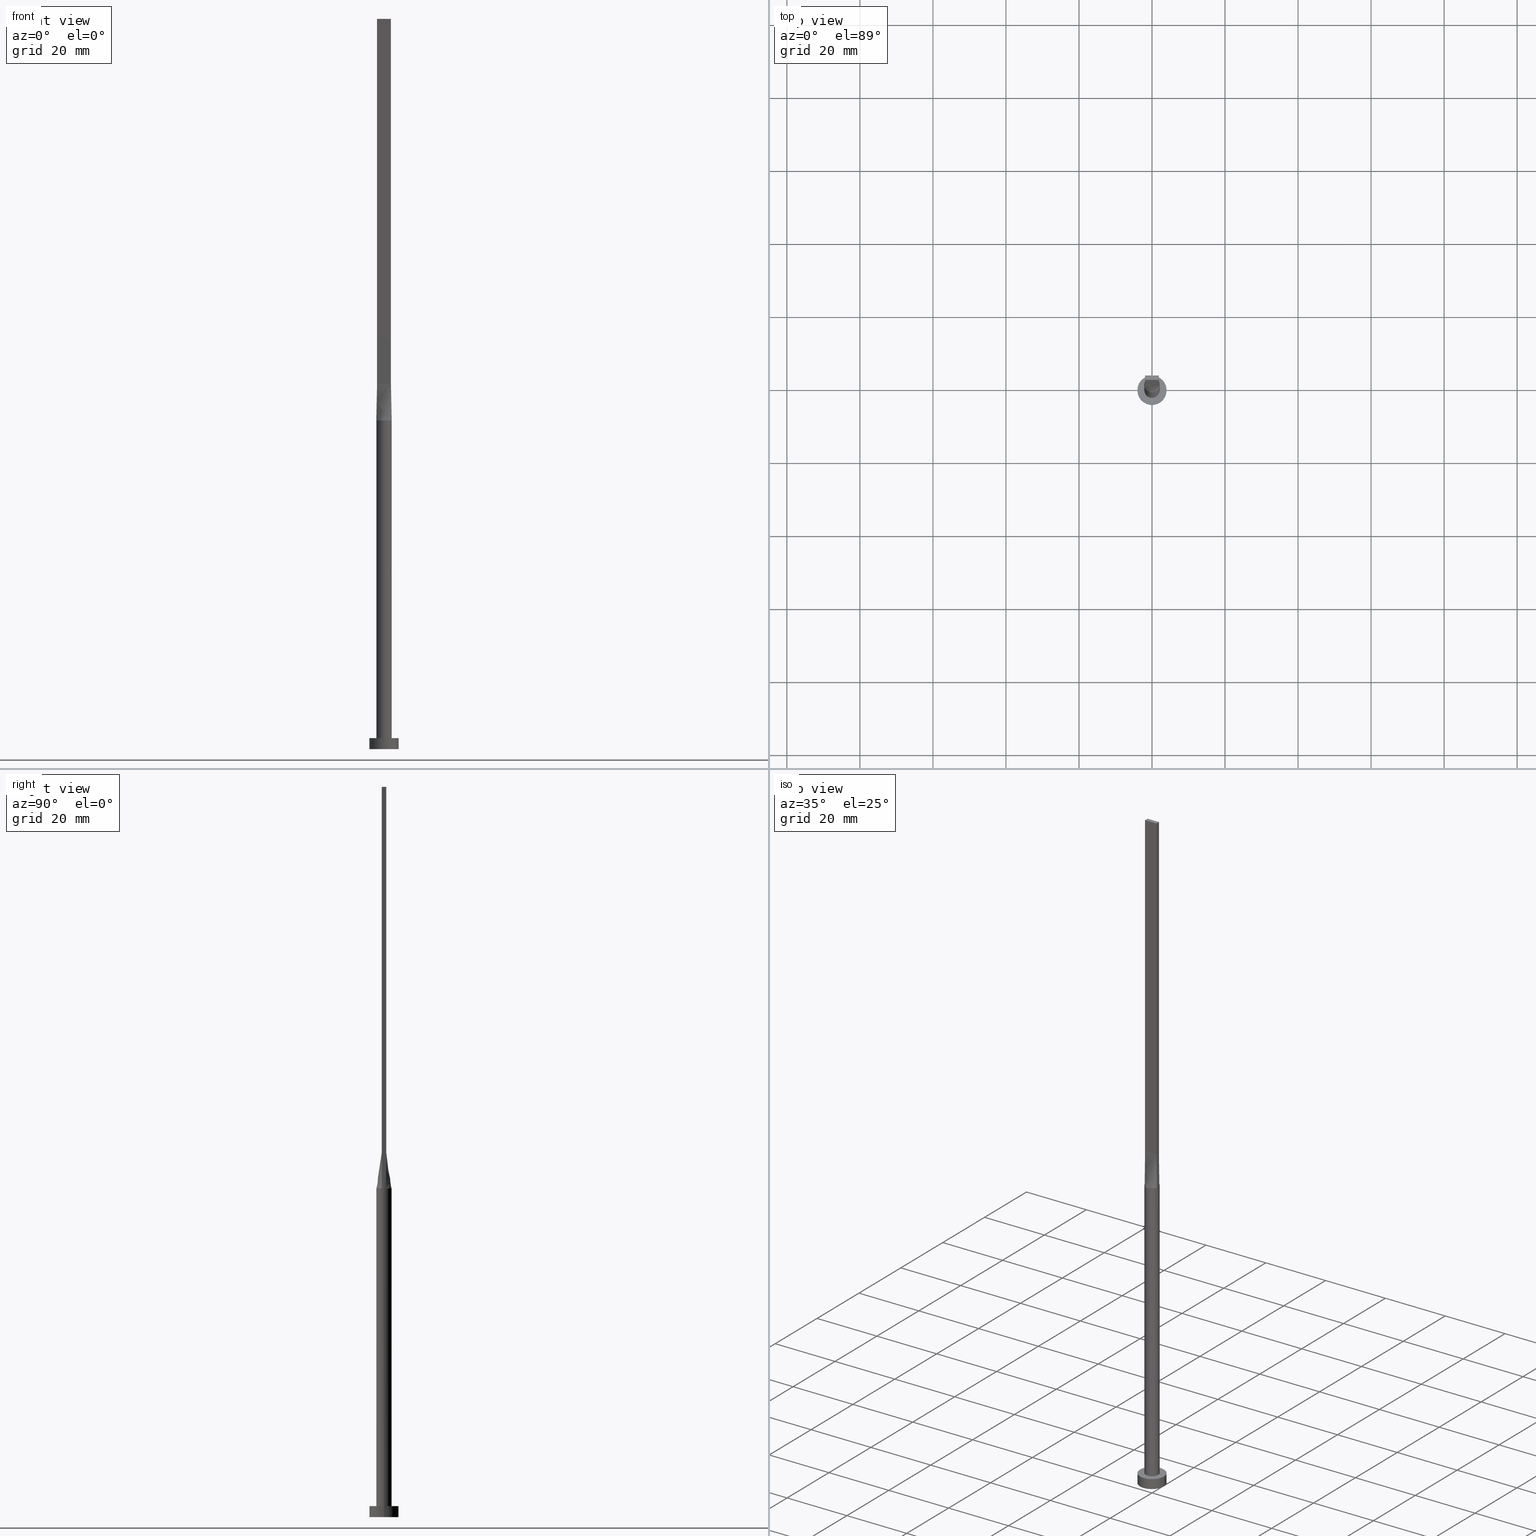
[diagram: canonical four-view strip — front | top / right | iso, engineering-drawing reading convention]
A machine part, canonical four-view strip (front | top / right | iso — engineering-drawing reading convention). The complete STEP part file that produces these views, byte-faithful:
ISO-10303-21;
HEADER;
FILE_DESCRIPTION (( 'STEP AP203' ),
    '1' );
FILE_NAME ('0564.STEP',
    '2023-02-13T11:23:46',
    ( '' ),
    ( '' ),
    'SwSTEP 2.0',
    'SolidWorks 2019',
    '' );
FILE_SCHEMA (( 'CONFIG_CONTROL_DESIGN' ));
ENDSEC;

DATA;
#1 = CARTESIAN_POINT ( 'NONE',  ( -1.667357759214464830, 1.291791096182927534, 90.00000000000001421 ) ) ;
#2 = EDGE_CURVE ( 'NONE', #59, #512, #418, .T. ) ;
#3 = DIRECTION ( 'NONE',  ( 1.000000000000000000, 0.000000000000000000, 0.000000000000000000 ) ) ;
#4 = CARTESIAN_POINT ( 'NONE',  ( -2.100000000000000089, 0.000000000000000000, 3.000000000000000000 ) ) ;
#5 = ORIENTED_EDGE ( 'NONE', *, *, #125, .F. ) ;
#6 = DIRECTION ( 'NONE',  ( 0.000000000000000000, 0.000000000000000000, 1.000000000000000000 ) ) ;
#7 = CARTESIAN_POINT ( 'NONE',  ( 1.899999999999999689, 0.6000000000000001998, 99.99999999999998579 ) ) ;
#8 = VERTEX_POINT ( 'NONE', #260 ) ;
#9 = ADVANCED_FACE ( 'NONE', ( #394 ), #196, .F. ) ;
#10 = DIRECTION ( 'NONE',  ( 1.000000000000000000, 0.000000000000000000, 0.000000000000000000 ) ) ;
#11 = DIRECTION ( 'NONE',  ( 1.000000000000000000, -5.706327223607920020E-17, 0.000000000000000000 ) ) ;
#12 = VERTEX_POINT ( 'NONE', #562 ) ;
#13 = VECTOR ( 'NONE', #262, 1000.000000000000114 ) ;
#14 = CARTESIAN_POINT ( 'NONE',  ( 1.899999999999999689, 0.6000000000000001998, 99.99999999999998579 ) ) ;
#15 = PERSON_AND_ORGANIZATION ( #393, #538 ) ;
#16 = DIRECTION ( 'NONE',  ( -1.000000000000000000, 0.000000000000000000, 0.000000000000000000 ) ) ;
#17 = ORIENTED_EDGE ( 'NONE', *, *, #464, .F. ) ;
#18 = ADVANCED_FACE ( 'NONE', ( #334 ), #485, .T. ) ;
#19 = PERSON_AND_ORGANIZATION ( #393, #538 ) ;
#20 = FACE_OUTER_BOUND ( 'NONE', #570, .T. ) ;
#21 = ORIENTED_EDGE ( 'NONE', *, *, #136, .T. ) ;
#22 = CARTESIAN_POINT ( 'NONE',  ( -1.899999999999999689, 0.6000000000000001998, 200.0000000000000000 ) ) ;
#23 = VECTOR ( 'NONE', #453, 1000.000000000000000 ) ;
#24 = VERTEX_POINT ( 'NONE', #7 ) ;
#25 = PERSON_AND_ORGANIZATION_ROLE ( 'creator' ) ;
#26 = LOCAL_TIME ( 12, 23, 46.00000000000000000, #100 ) ;
#27 = CARTESIAN_POINT ( 'NONE',  ( -1.899999999999999689, 0.6000000000000001998, 99.99999999999998579 ) ) ;
#28 = EDGE_CURVE ( 'NONE', #8, #114, #152, .T. ) ;
#29 = VERTEX_POINT ( 'NONE', #127 ) ;
#30 = PERSON_AND_ORGANIZATION ( #393, #538 ) ;
#31 = CARTESIAN_POINT ( 'NONE',  ( -1.899999999999999689, 0.6000000000000001998, 200.0000000000000000 ) ) ;
#32 = DATE_TIME_ROLE ( 'classification_date' ) ;
#33 = CARTESIAN_POINT ( 'NONE',  ( -0.7916666666666660745, 0.6000000000000000888, 99.99999999999998579 ) ) ;
#34 = COORDINATED_UNIVERSAL_TIME_OFFSET ( 1, 0, .AHEAD. ) ;
#35 = AXIS2_PLACEMENT_3D ( 'NONE', #511, #149, #514 ) ;
#36 = CARTESIAN_POINT ( 'NONE',  ( -1.741666666666666252, -0.5999999999999995337, 99.99999999999997158 ) ) ;
#37 = VECTOR ( 'NONE', #220, 1000.000000000000000 ) ;
#38 = FACE_OUTER_BOUND ( 'NONE', #227, .T. ) ;
#39 = ORIENTED_EDGE ( 'NONE', *, *, #296, .T. ) ;
#40 = CARTESIAN_POINT ( 'NONE',  ( 1.266666666666666385, -0.5999999999999996447, 99.99999999999997158 ) ) ;
#41 = CARTESIAN_POINT ( 'NONE',  ( 1.878511276496548366, 0.9591670956957804028, 90.00000000000000000 ) ) ;
#42 = CARTESIAN_POINT ( 'NONE',  ( -0.2565105576742081062, -2.100000000000000089, 89.99999999999998579 ) ) ;
#43 = FACE_OUTER_BOUND ( 'NONE', #139, .T. ) ;
#44 = EDGE_CURVE ( 'NONE', #339, #548, #403, .T. ) ;
#45 = CARTESIAN_POINT ( 'NONE',  ( -0.3166666666666659302, -0.5999999999999996447, 99.99999999999997158 ) ) ;
#46 = CARTESIAN_POINT ( 'NONE',  ( 0.9765948449220478444, 1.875594675604967065, 90.00000000000001421 ) ) ;
#47 = CARTESIAN_POINT ( 'NONE',  ( 2.002523596781698334, -0.6323758726679041819, 90.00000000000000000 ) ) ;
#48 = CYLINDRICAL_SURFACE ( 'NONE', #505, 4.000000000000000000 ) ;
#49 = VERTEX_POINT ( 'NONE', #447 ) ;
#50 = APPROVAL ( #325, 'NEUR�EN�' ) ;
#51 = CARTESIAN_POINT ( 'NONE',  ( -1.899999999999999467, 0.3999999999999996891, 99.99999999999997158 ) ) ;
#52 = CARTESIAN_POINT ( 'NONE',  ( -1.184262492297963876, 1.748903470433446294, 90.00000000000002842 ) ) ;
#53 = EDGE_LOOP ( 'NONE', ( #451, #73, #420, #404 ) ) ;
#54 = DIRECTION ( 'NONE',  ( -1.000000000000000000, 5.706327223607920020E-17, 0.000000000000000000 ) ) ;
#55 = CARTESIAN_POINT ( 'NONE',  ( 0.000000000000000000, 0.000000000000000000, 90.00000000000000000 ) ) ;
#56 = ORIENTED_EDGE ( 'NONE', *, *, #411, .T. ) ;
#57 =( NAMED_UNIT ( * ) SI_UNIT ( $, .STERADIAN. ) SOLID_ANGLE_UNIT ( ) );
#58 = CARTESIAN_POINT ( 'NONE',  ( 1.899999999999999689, 0.6000000000000001998, 200.0000000000000000 ) ) ;
#59 = VERTEX_POINT ( 'NONE', #4 ) ;
#60 = CARTESIAN_POINT ( 'NONE',  ( -1.899999999999999911, -0.5999999999999995337, 200.0000000000000000 ) ) ;
#61 = PLANE ( 'NONE',  #398 ) ;
#62 = EDGE_CURVE ( 'NONE', #190, #12, #91, .T. ) ;
#63 = VERTEX_POINT ( 'NONE', #129 ) ;
#64 = VECTOR ( 'NONE', #207, 1000.000000000000000 ) ;
#65 = CARTESIAN_POINT ( 'NONE',  ( -1.899999999999999911, -0.5999999999999995337, 99.99999999999998579 ) ) ;
#66 = DIRECTION ( 'NONE',  ( 0.000000000000000000, 0.000000000000000000, 1.000000000000000000 ) ) ;
#67 = ORIENTED_EDGE ( 'NONE', *, *, #179, .T. ) ;
#68 = FACE_OUTER_BOUND ( 'NONE', #473, .T. ) ;
#69 = ORIENTED_EDGE ( 'NONE', *, *, #375, .T. ) ;
#70 = APPROVAL_DATE_TIME ( #157, #103 ) ;
#71 = PRODUCT_DEFINITION ( 'NEZN�M�', '', #163, #213 ) ;
#72 = CARTESIAN_POINT ( 'NONE',  ( -0.1583333333333331316, 0.6000000000000000888, 99.99999999999997158 ) ) ;
#73 = ORIENTED_EDGE ( 'NONE', *, *, #179, .F. ) ;
#74 = SECURITY_CLASSIFICATION ( '', '', #565 ) ;
#75 = CARTESIAN_POINT ( 'NONE',  ( -0.9765948449220482885, 1.875594675604967509, 90.00000000000004263 ) ) ;
#76 = CARTESIAN_POINT ( 'NONE',  ( -1.529462611013499451, 1.456669187245239527, 90.00000000000002842 ) ) ;
#77 = PERSON_AND_ORGANIZATION_ROLE ( 'classification_officer' ) ;
#78 = CARTESIAN_POINT ( 'NONE',  ( 0.7916666666666670737, 0.6000000000000000888, 99.99999999999997158 ) ) ;
#79 = EDGE_CURVE ( 'NONE', #190, #293, #503, .T. ) ;
#80 = CARTESIAN_POINT ( 'NONE',  ( -0.7916666666666657415, -0.5999999999999996447, 99.99999999999995737 ) ) ;
#81 = DIRECTION ( 'NONE',  ( 0.000000000000000000, 0.000000000000000000, 1.000000000000000000 ) ) ;
#82 = CARTESIAN_POINT ( 'NONE',  ( -1.878511276496548144, -0.9591670956957798477, 90.00000000000000000 ) ) ;
#83 = CARTESIAN_POINT ( 'NONE',  ( -1.951261798390848901, -0.6161879363339519688, 95.00000000000000000 ) ) ;
#84 = CARTESIAN_POINT ( 'NONE',  ( 0.5124799074986360337, -2.051574327850739454, 90.00000000000002842 ) ) ;
#85 = ADVANCED_FACE ( 'NONE', ( #43 ), #48, .T. ) ;
#86 = CARTESIAN_POINT ( 'NONE',  ( 1.899999999999999911, -0.5999999999999997558, 99.99999999999998579 ) ) ;
#87 = DIRECTION ( 'NONE',  ( 0.000000000000000000, 0.000000000000000000, 1.000000000000000000 ) ) ;
#88 = CARTESIAN_POINT ( 'NONE',  ( 0.000000000000000000, 0.000000000000000000, 3.000000000000000000 ) ) ;
#89 = EDGE_LOOP ( 'NONE', ( #155, #518, #458, #67 ) ) ;
#90 = CARTESIAN_POINT ( 'NONE',  ( -0.5124799074986365888, -2.051574327850738566, 90.00000000000002842 ) ) ;
#91 = LINE ( 'NONE', #406, #256 ) ;
#92 = EDGE_LOOP ( 'NONE', ( #95, #159 ) ) ;
#93 = PERSON_AND_ORGANIZATION ( #393, #538 ) ;
#94 = DIRECTION ( 'NONE',  ( 1.000000000000000000, 0.000000000000000000, 0.000000000000000000 ) ) ;
#95 = ORIENTED_EDGE ( 'NONE', *, *, #303, .F. ) ;
#96 = CARTESIAN_POINT ( 'NONE',  ( 1.951261798390848901, 0.6161879363339524129, 95.00000000000000000 ) ) ;
#97 = CIRCLE ( 'NONE', #432, 2.100000000000000089 ) ;
#98 = LOCAL_TIME ( 12, 23, 46.00000000000000000, #460 ) ;
#99 = ORIENTED_EDGE ( 'NONE', *, *, #257, .F. ) ;
#100 = COORDINATED_UNIVERSAL_TIME_OFFSET ( 1, 0, .AHEAD. ) ;
#101 = LINE ( 'NONE', #370, #508 ) ;
#102 = ORIENTED_EDGE ( 'NONE', *, *, #375, .F. ) ;
#103 = APPROVAL ( #476, 'NEUR�EN�' ) ;
#104 = CARTESIAN_POINT ( 'NONE',  ( 0.000000000000000000, 0.000000000000000000, 90.00000000000000000 ) ) ;
#105 = CARTESIAN_POINT ( 'NONE',  ( 0.000000000000000000, 0.000000000000000000, 0.000000000000000000 ) ) ;
#106 = AXIS2_PLACEMENT_3D ( 'NONE', #487, #81, #290 ) ;
#107 = DIRECTION ( 'NONE',  ( 1.000000000000000000, 0.000000000000000000, -0.000000000000000000 ) ) ;
#108 = EDGE_LOOP ( 'NONE', ( #39, #426, #137, #202 ) ) ;
#109 = AXIS2_PLACEMENT_3D ( 'NONE', #204, #246, #298 ) ;
#110 = CARTESIAN_POINT ( 'NONE',  ( 0.000000000000000000, 0.000000000000000000, 3.000000000000000000 ) ) ;
#111 = ORIENTED_EDGE ( 'NONE', *, *, #382, .F. ) ;
#112 = EDGE_CURVE ( 'NONE', #205, #199, #429, .T. ) ;
#113 = CARTESIAN_POINT ( 'NONE',  ( -0.6333333333333327486, 0.6000000000000000888, 99.99999999999997158 ) ) ;
#114 = VERTEX_POINT ( 'NONE', #457 ) ;
#115 = CARTESIAN_POINT ( 'NONE',  ( 1.266666666666667052, 0.6000000000000000888, 99.99999999999998579 ) ) ;
#116 = CC_DESIGN_APPROVAL ( #103, ( #74 ) ) ;
#117 = CARTESIAN_POINT ( 'NONE',  ( -1.741666666666666474, 0.6000000000000000888, 99.99999999999998579 ) ) ;
#118 = FACE_OUTER_BOUND ( 'NONE', #423, .T. ) ;
#119 = EDGE_CURVE ( 'NONE', #29, #12, #578, .T. ) ;
#120 = CARTESIAN_POINT ( 'NONE',  ( -1.583333333333333259, 0.6000000000000000888, 99.99999999999998579 ) ) ;
#121 = ORIENTED_EDGE ( 'NONE', *, *, #208, .T. ) ;
#122 = CARTESIAN_POINT ( 'NONE',  ( 1.878511276496548366, -0.9591670956957810690, 90.00000000000001421 ) ) ;
#123 = AXIS2_PLACEMENT_3D ( 'NONE', #214, #6, #3 ) ;
#124 = CARTESIAN_POINT ( 'NONE',  ( -1.899999999999999689, 0.6000000000000001998, 99.99999999999998579 ) ) ;
#125 = EDGE_CURVE ( 'NONE', #24, #548, #537, .T. ) ;
#126 = DIRECTION ( 'NONE',  ( 0.000000000000000000, 0.000000000000000000, 1.000000000000000000 ) ) ;
#127 = CARTESIAN_POINT ( 'NONE',  ( 2.002626276893244128, -0.6324088233005202841, 90.00000000000000000 ) ) ;
#128 = CARTESIAN_POINT ( 'NONE',  ( -1.266666666666665941, -0.5999999999999996447, 99.99999999999995737 ) ) ;
#129 = CARTESIAN_POINT ( 'NONE',  ( -2.100000000000000089, -1.284268198382905442E-16, 90.00000000000000000 ) ) ;
#130 = CYLINDRICAL_SURFACE ( 'NONE', #519, 4.000000000000000000 ) ;
#131 = VECTOR ( 'NONE', #326, 1000.000000000000114 ) ;
#132 = VECTOR ( 'NONE', #266, 1000.000000000000000 ) ;
#133 = CARTESIAN_POINT ( 'NONE',  ( 1.952271707612931895, 0.7915068550356627597, 89.99999999999998579 ) ) ;
#134 = CARTESIAN_POINT ( 'NONE',  ( -1.583333333333332593, -0.5999999999999995337, 99.99999999999995737 ) ) ;
#135 = CARTESIAN_POINT ( 'NONE',  ( -1.952271707612931895, 0.7915068550356629817, 90.00000000000001421 ) ) ;
#136 = EDGE_CURVE ( 'NONE', #49, #251, #491, .T. ) ;
#137 = ORIENTED_EDGE ( 'NONE', *, *, #275, .T. ) ;
#138 = DIRECTION ( 'NONE',  ( -1.807003620809174139E-16, 1.000000000000000000, -0.000000000000000000 ) ) ;
#139 = EDGE_LOOP ( 'NONE', ( #238, #247, #374, #102 ) ) ;
#140 = VECTOR ( 'NONE', #305, 1000.000000000000000 ) ;
#141 = DATE_TIME_ROLE ( 'creation_date' ) ;
#142 = DIRECTION ( 'NONE',  ( -1.000000000000000000, 0.000000000000000000, 0.000000000000000000 ) ) ;
#143 = VERTEX_POINT ( 'NONE', #396 ) ;
#144 = CC_DESIGN_DATE_AND_TIME_ASSIGNMENT ( #369, #141, ( #71 ) ) ;
#145 = CARTESIAN_POINT ( 'NONE',  ( 0.000000000000000000, 0.000000000000000000, 0.000000000000000000 ) ) ;
#146 = CARTESIAN_POINT ( 'NONE',  ( -4.000000000000000000, 0.000000000000000000, 3.000000000000000000 ) ) ;
#147 = ORIENTED_EDGE ( 'NONE', *, *, #509, .F. ) ;
#148 = PLANE ( 'NONE',  #288 ) ;
#149 = DIRECTION ( 'NONE',  ( 0.000000000000000000, 0.000000000000000000, 1.000000000000000000 ) ) ;
#150 = ORIENTED_EDGE ( 'NONE', *, *, #427, .T. ) ;
#151 = APPROVAL_STATUS ( 'not_yet_approved' ) ;
#152 = B_SPLINE_CURVE_WITH_KNOTS ( 'NONE', 3,
 ( #174, #133, #41, #493, #314, #496, #46, #318, #273, #218, #450, #540, #52, #580, #1, #169, #135, #307 ),
 .UNSPECIFIED., .F., .F.,
 ( 4, 2, 2, 2, 2, 2, 2, 2, 4 ),
 ( 0.000000000000000000, 0.1249999999999999167, 0.2499999999999998890, 0.3749999999999998335, 0.4999999999999998890, 0.6249999999999998890, 0.7499999999999998890, 0.8750000000000000000, 1.000000000000000000 ),
 .UNSPECIFIED. ) ;
#153 = CARTESIAN_POINT ( 'NONE',  ( 0.000000000000000000, 0.000000000000000000, 90.00000000000000000 ) ) ;
#154 = EDGE_CURVE ( 'NONE', #199, #186, #172, .T. ) ;
#155 = ORIENTED_EDGE ( 'NONE', *, *, #382, .T. ) ;
#156 = CC_DESIGN_APPROVAL ( #50, ( #163 ) ) ;
#157 = DATE_AND_TIME ( #341, #566 ) ;
#158 = CARTESIAN_POINT ( 'NONE',  ( 0.6333333333333338588, 0.6000000000000000888, 99.99999999999997158 ) ) ;
#159 = ORIENTED_EDGE ( 'NONE', *, *, #340, .F. ) ;
#160 = MANIFOLD_SOLID_BREP ( 'P�idat vysunut�m5', #534 ) ;
#161 = CARTESIAN_POINT ( 'NONE',  ( 1.899999999999999689, 0.6000000000000001998, 200.0000000000000000 ) ) ;
#162 = CARTESIAN_POINT ( 'NONE',  ( -4.000000000000000000, 0.000000000000000000, 3.000000000000000000 ) ) ;
#163 = PRODUCT_DEFINITION_FORMATION_WITH_SPECIFIED_SOURCE ( 'LIBOVOLN�', '', #225, .NOT_KNOWN. ) ;
#164 = EDGE_CURVE ( 'NONE', #512, #59, #554, .T. ) ;
#165 = CARTESIAN_POINT ( 'NONE',  ( 1.667357759214464608, 1.291791096182927090, 90.00000000000000000 ) ) ;
#166 = CARTESIAN_POINT ( 'NONE',  ( -0.5124799074986362557, 2.051574327850739454, 90.00000000000002842 ) ) ;
#167 = ORIENTED_EDGE ( 'NONE', *, *, #245, .T. ) ;
#168 = CARTESIAN_POINT ( 'NONE',  ( -1.667357759214464386, -1.291791096182926424, 89.99999999999997158 ) ) ;
#169 = CARTESIAN_POINT ( 'NONE',  ( -1.878511276496549032, 0.9591670956957809580, 90.00000000000004263 ) ) ;
#170 = CC_DESIGN_PERSON_AND_ORGANIZATION_ASSIGNMENT ( #276, #421, ( #225 ) ) ;
#171 = CARTESIAN_POINT ( 'NONE',  ( -0.9765948449220485106, -1.875594675604967509, 90.00000000000002842 ) ) ;
#172 = LINE ( 'NONE', #367, #219 ) ;
#173 = CARTESIAN_POINT ( 'NONE',  ( -4.000000000000000000, 0.000000000000000000, 0.000000000000000000 ) ) ;
#174 = CARTESIAN_POINT ( 'NONE',  ( 2.002598039528881380, 0.6323997261616642884, 90.00000000000000000 ) ) ;
#175 = LINE ( 'NONE', #499, #132 ) ;
#176 = CARTESIAN_POINT ( 'NONE',  ( -1.899999999999999689, 0.6000000000000001998, 200.0000000000000000 ) ) ;
#177 = VECTOR ( 'NONE', #401, 1000.000000000000000 ) ;
#178 = LINE ( 'NONE', #263, #37 ) ;
#179 = EDGE_CURVE ( 'NONE', #324, #49, #237, .T. ) ;
#180 = CIRCLE ( 'NONE', #240, 2.100000000000000089 ) ;
#181 = DIRECTION ( 'NONE',  ( -1.000000000000000000, 0.000000000000000000, 0.000000000000000000 ) ) ;
#182 = ORIENTED_EDGE ( 'NONE', *, *, #483, .T. ) ;
#183 = APPLICATION_CONTEXT ( 'configuration controlled 3d designs of mechanical parts and assemblies' ) ;
#184 = FACE_OUTER_BOUND ( 'NONE', #89, .T. ) ;
#185 = DIRECTION ( 'NONE',  ( 1.000000000000000000, 0.000000000000000000, -0.000000000000000000 ) ) ;
#186 = VERTEX_POINT ( 'NONE', #422 ) ;
#187 = CALENDAR_DATE ( 2023, 13, 2 ) ;
#188 = CARTESIAN_POINT ( 'NONE',  ( 1.899999999999999023, -0.5999999999999997558, 200.0000000000000000 ) ) ;
#189 = ADVANCED_FACE ( 'NONE', ( #68 ), #243, .T. ) ;
#190 = VERTEX_POINT ( 'NONE', #188 ) ;
#191 = AXIS2_PLACEMENT_3D ( 'NONE', #472, #66, #552 ) ;
#192 = APPLICATION_PROTOCOL_DEFINITION ( 'international standard', 'config_control_design', 1994, #407 ) ;
#193 = CARTESIAN_POINT ( 'NONE',  ( 0.000000000000000000, 0.000000000000000000, 0.000000000000000000 ) ) ;
#194 = ORIENTED_EDGE ( 'NONE', *, *, #44, .F. ) ;
#195 = FACE_BOUND ( 'NONE', #434, .T. ) ;
#196 = PLANE ( 'NONE',  #274 ) ;
#197 = DIRECTION ( 'NONE',  ( 1.000000000000000000, 0.000000000000000000, 0.000000000000000000 ) ) ;
#198 = PLANE ( 'NONE',  #203 ) ;
#199 = VERTEX_POINT ( 'NONE', #235 ) ;
#200 = COORDINATED_UNIVERSAL_TIME_OFFSET ( 1, 0, .AHEAD. ) ;
#201 = CARTESIAN_POINT ( 'NONE',  ( 2.100000000000000089, 2.571758278209441957E-16, 90.00000000000000000 ) ) ;
#202 = ORIENTED_EDGE ( 'NONE', *, *, #79, .T. ) ;
#203 = AXIS2_PLACEMENT_3D ( 'NONE', #110, #292, #185 ) ;
#204 = CARTESIAN_POINT ( 'NONE',  ( 0.000000000000000000, 0.000000000000000000, 0.000000000000000000 ) ) ;
#205 = VERTEX_POINT ( 'NONE', #146 ) ;
#206 = PERSON_AND_ORGANIZATION ( #393, #538 ) ;
#207 = DIRECTION ( 'NONE',  ( -1.807003620809174632E-16, -1.000000000000000000, 0.000000000000000000 ) ) ;
#208 = EDGE_CURVE ( 'NONE', #251, #29, #495, .T. ) ;
#209 = SHAPE_DEFINITION_REPRESENTATION ( #561, #316 ) ;
#210 = DIRECTION ( 'NONE',  ( 0.000000000000000000, -0.000000000000000000, -1.000000000000000000 ) ) ;
#211 = VECTOR ( 'NONE', #549, 1000.000000000000000 ) ;
#212 = CARTESIAN_POINT ( 'NONE',  ( 0.9765948449220478444, 1.875594675604967065, 90.00000000000001421 ) ) ;
#213 = DESIGN_CONTEXT ( 'detailed design', #407, 'design' ) ;
#214 = CARTESIAN_POINT ( 'NONE',  ( 0.000000000000000000, 0.000000000000000000, 90.00000000000000000 ) ) ;
#215 = EDGE_CURVE ( 'NONE', #8, #24, #555, .T. ) ;
#216 = ORIENTED_EDGE ( 'NONE', *, *, #215, .F. ) ;
#217 = CARTESIAN_POINT ( 'NONE',  ( 1.184262492297964320, -1.748903470433446961, 90.00000000000005684 ) ) ;
#218 = CARTESIAN_POINT ( 'NONE',  ( -0.2565105576742073845, 2.100000000000000533, 90.00000000000001421 ) ) ;
#219 = VECTOR ( 'NONE', #335, 1000.000000000000000 ) ;
#220 = DIRECTION ( 'NONE',  ( -0.000000000000000000, -0.000000000000000000, -1.000000000000000000 ) ) ;
#221 = APPROVAL_PERSON_ORGANIZATION ( #479, #103, #291 ) ;
#222 = DIRECTION ( 'NONE',  ( -0.01025176717979720507, 0.003237400162041171366, 0.9999422085850171449 ) ) ;
#223 = CARTESIAN_POINT ( 'NONE',  ( 1.108333333333333171, -0.5999999999999996447, 99.99999999999997158 ) ) ;
#224 = CARTESIAN_POINT ( 'NONE',  ( 2.100000000000000089, 0.2158003972066308285, 89.99999999999997158 ) ) ;
#225 = PRODUCT ( '0564', '0564', '', ( #470 ) ) ;
#226 = EDGE_CURVE ( 'NONE', #199, #205, #287, .T. ) ;
#227 = EDGE_LOOP ( 'NONE', ( #507, #241, #462, #147, #556 ) ) ;
#228 = CARTESIAN_POINT ( 'NONE',  ( -0.1583333333333327708, -0.5999999999999996447, 99.99999999999995737 ) ) ;
#229 = DIRECTION ( 'NONE',  ( -0.000000000000000000, -0.000000000000000000, -1.000000000000000000 ) ) ;
#230 = PERSON_AND_ORGANIZATION_ROLE ( 'creator' ) ;
#231 = LOCAL_TIME ( 12, 23, 46.00000000000000000, #200 ) ;
#232 = CARTESIAN_POINT ( 'NONE',  ( 1.951261798390848901, -0.6161879363339519688, 95.00000000000000000 ) ) ;
#233 = PLANE ( 'NONE',  #433 ) ;
#234 = ADVANCED_FACE ( 'NONE', ( #20 ), #279, .T. ) ;
#235 = CARTESIAN_POINT ( 'NONE',  ( 4.000000000000000000, 4.898587196589412829E-16, 3.000000000000000000 ) ) ;
#236 = ORIENTED_EDGE ( 'NONE', *, *, #154, .F. ) ;
#237 = LINE ( 'NONE', #333, #343 ) ;
#238 = ORIENTED_EDGE ( 'NONE', *, *, #226, .F. ) ;
#239 = CARTESIAN_POINT ( 'NONE',  ( 1.899999999999999689, 0.6000000000000001998, 200.0000000000000000 ) ) ;
#240 = AXIS2_PLACEMENT_3D ( 'NONE', #541, #126, #494 ) ;
#241 = ORIENTED_EDGE ( 'NONE', *, *, #437, .T. ) ;
#242 = DIRECTION ( 'NONE',  ( 0.000000000000000000, 0.000000000000000000, 1.000000000000000000 ) ) ;
#243 = CYLINDRICAL_SURFACE ( 'NONE', #536, 2.100000000000000089 ) ;
#244 = ORIENTED_EDGE ( 'NONE', *, *, #357, .F. ) ;
#245 = EDGE_CURVE ( 'NONE', #12, #24, #378, .T. ) ;
#246 = DIRECTION ( 'NONE',  ( 0.000000000000000000, 0.000000000000000000, 1.000000000000000000 ) ) ;
#247 = ORIENTED_EDGE ( 'NONE', *, *, #154, .T. ) ;
#248 = CALENDAR_DATE ( 2023, 13, 2 ) ;
#249 = AXIS2_PLACEMENT_3D ( 'NONE', #88, #365, #94 ) ;
#250 = CARTESIAN_POINT ( 'NONE',  ( -1.952271707612931895, 0.7915068550356629817, 90.00000000000001421 ) ) ;
#251 = VERTEX_POINT ( 'NONE', #415 ) ;
#252 = CARTESIAN_POINT ( 'NONE',  ( 1.108333333333333615, 0.6000000000000000888, 99.99999999999997158 ) ) ;
#253 = ADVANCED_FACE ( 'NONE', ( #376 ), #517, .T. ) ;
#254 = CARTESIAN_POINT ( 'NONE',  ( 0.5124799074986362557, 2.051574327850739454, 90.00000000000004263 ) ) ;
#255 = CARTESIAN_POINT ( 'NONE',  ( -1.667357759214464830, 1.291791096182927534, 90.00000000000001421 ) ) ;
#256 = VECTOR ( 'NONE', #542, 1000.000000000000000 ) ;
#257 = EDGE_CURVE ( 'NONE', #143, #8, #97, .T. ) ;
#258 =( GEOMETRIC_REPRESENTATION_CONTEXT ( 3 ) GLOBAL_UNCERTAINTY_ASSIGNED_CONTEXT ( ( #345 ) ) GLOBAL_UNIT_ASSIGNED_CONTEXT ( ( #321, #410, #57 ) ) REPRESENTATION_CONTEXT ( 'NONE', 'WORKASPACE' ) );
#259 = DIRECTION ( 'NONE',  ( 1.000000000000000000, -1.776356839400250465E-15, 0.000000000000000000 ) ) ;
#260 = CARTESIAN_POINT ( 'NONE',  ( 2.002598039528881380, 0.6323997261616642884, 90.00000000000000000 ) ) ;
#261 = CARTESIAN_POINT ( 'NONE',  ( -1.899999999999999689, 0.6000000000000001998, 99.99999999999998579 ) ) ;
#262 = DIRECTION ( 'NONE',  ( -0.01025176717979707323, -0.003237400162041204326, -0.9999422085850171449 ) ) ;
#263 = CARTESIAN_POINT ( 'NONE',  ( -2.100000000000000089, 0.000000000000000000, 90.00000000000000000 ) ) ;
#264 = CARTESIAN_POINT ( 'NONE',  ( 1.899999999999999689, -0.1999999999999992339, 99.99999999999997158 ) ) ;
#265 = CIRCLE ( 'NONE', #372, 4.000000000000000000 ) ;
#266 = DIRECTION ( 'NONE',  ( -0.000000000000000000, -0.000000000000000000, -1.000000000000000000 ) ) ;
#267 = CARTESIAN_POINT ( 'NONE',  ( 2.099999999999999645, -0.2158003972066312171, 90.00000000000000000 ) ) ;
#268 = CC_DESIGN_DATE_AND_TIME_ASSIGNMENT ( #390, #32, ( #74 ) ) ;
#269 = EDGE_LOOP ( 'NONE', ( #315, #56, #5, #216 ) ) ;
#270 = CARTESIAN_POINT ( 'NONE',  ( 0.1583333333333337978, -0.5999999999999996447, 99.99999999999995737 ) ) ;
#271 = CARTESIAN_POINT ( 'NONE',  ( 1.899999999999999023, -0.5999999999999997558, 200.0000000000000000 ) ) ;
#272 = CARTESIAN_POINT ( 'NONE',  ( -1.899999999999999689, 0.6000000000000001998, 99.99999999999998579 ) ) ;
#273 = CARTESIAN_POINT ( 'NONE',  ( 0.2565105576742081062, 2.100000000000000533, 90.00000000000000000 ) ) ;
#274 = AXIS2_PLACEMENT_3D ( 'NONE', #105, #284, #377 ) ;
#275 = EDGE_CURVE ( 'NONE', #324, #190, #101, .T. ) ;
#276 = PERSON_AND_ORGANIZATION ( #393, #538 ) ;
#277 = AXIS2_PLACEMENT_3D ( 'NONE', #104, #417, #142 ) ;
#278 = APPROVAL_PERSON_ORGANIZATION ( #19, #50, #510 ) ;
#279 = CYLINDRICAL_SURFACE ( 'NONE', #277, 2.100000000000000089 ) ;
#280 = CARTESIAN_POINT ( 'NONE',  ( -2.100000000000000089, -0.2158003972066306064, 89.99999999999997158 ) ) ;
#281 = CARTESIAN_POINT ( 'NONE',  ( 1.899999999999999023, -0.5999999999999997558, 200.0000000000000000 ) ) ;
#282 = CARTESIAN_POINT ( 'NONE',  ( -2.099999999999999645, 0.2158003972066311338, 90.00000000000000000 ) ) ;
#283 = FACE_OUTER_BOUND ( 'NONE', #386, .T. ) ;
#284 = DIRECTION ( 'NONE',  ( 0.000000000000000000, 0.000000000000000000, 1.000000000000000000 ) ) ;
#285 = CALENDAR_DATE ( 2023, 13, 2 ) ;
#286 = FACE_OUTER_BOUND ( 'NONE', #350, .T. ) ;
#287 = CIRCLE ( 'NONE', #35, 4.000000000000000000 ) ;
#288 = AXIS2_PLACEMENT_3D ( 'NONE', #60, #551, #54 ) ;
#289 = ADVANCED_FACE ( 'NONE', ( #283 ), #61, .F. ) ;
#290 = DIRECTION ( 'NONE',  ( 1.000000000000000000, 0.000000000000000000, 0.000000000000000000 ) ) ;
#291 = APPROVAL_ROLE ( '' ) ;
#292 = DIRECTION ( 'NONE',  ( 0.000000000000000000, 0.000000000000000000, 1.000000000000000000 ) ) ;
#293 = VERTEX_POINT ( 'NONE', #58 ) ;
#294 = CARTESIAN_POINT ( 'NONE',  ( -0.2565105576742073845, 2.100000000000000533, 90.00000000000001421 ) ) ;
#295 = ORIENTED_EDGE ( 'NONE', *, *, #296, .F. ) ;
#296 = EDGE_CURVE ( 'NONE', #293, #339, #412, .T. ) ;
#297 = CARTESIAN_POINT ( 'NONE',  ( 1.529462611013499451, 1.456669187245239527, 90.00000000000002842 ) ) ;
#298 = DIRECTION ( 'NONE',  ( 1.000000000000000000, 0.000000000000000000, 0.000000000000000000 ) ) ;
#299 = CALENDAR_DATE ( 2023, 13, 2 ) ;
#300 = CARTESIAN_POINT ( 'NONE',  ( -1.899999999999999911, -0.5999999999999995337, 99.99999999999998579 ) ) ;
#301 = FACE_OUTER_BOUND ( 'NONE', #269, .T. ) ;
#302 = ORIENTED_EDGE ( 'NONE', *, *, #437, .F. ) ;
#303 = EDGE_CURVE ( 'NONE', #430, #186, #265, .T. ) ;
#304 = DIRECTION ( 'NONE',  ( -0.000000000000000000, -0.000000000000000000, -1.000000000000000000 ) ) ;
#305 = DIRECTION ( 'NONE',  ( -1.000000000000000000, -0.000000000000000000, -0.000000000000000000 ) ) ;
#306 = CARTESIAN_POINT ( 'NONE',  ( -1.108333333333332504, -0.5999999999999996447, 99.99999999999994316 ) ) ;
#307 = CARTESIAN_POINT ( 'NONE',  ( -2.002622288503867587, 0.6324075186587619912, 90.00000000000000000 ) ) ;
#308 = CARTESIAN_POINT ( 'NONE',  ( -1.529462611013499229, -1.456669187245239749, 90.00000000000001421 ) ) ;
#309 = ADVANCED_FACE ( 'NONE', ( #195, #286 ), #198, .T. ) ;
#310 = CARTESIAN_POINT ( 'NONE',  ( 0.000000000000000000, 0.000000000000000000, 3.000000000000000000 ) ) ;
#311 = ORIENTED_EDGE ( 'NONE', *, *, #245, .F. ) ;
#312 = AXIS2_PLACEMENT_3D ( 'NONE', #535, #87, #259 ) ;
#313 = CARTESIAN_POINT ( 'NONE',  ( 0.000000000000000000, 0.000000000000000000, 3.000000000000000000 ) ) ;
#314 = CARTESIAN_POINT ( 'NONE',  ( 1.529462611013499451, 1.456669187245239527, 90.00000000000002842 ) ) ;
#315 = ORIENTED_EDGE ( 'NONE', *, *, #28, .T. ) ;
#316 = ADVANCED_BREP_SHAPE_REPRESENTATION ( '0564', ( #160, #488 ), #258 ) ;
#317 = CARTESIAN_POINT ( 'NONE',  ( 0.9765948449220478444, -1.875594675604967954, 90.00000000000005684 ) ) ;
#318 = CARTESIAN_POINT ( 'NONE',  ( 0.5124799074986362557, 2.051574327850739454, 90.00000000000004263 ) ) ;
#319 = ADVANCED_FACE ( 'NONE', ( #301 ), #531, .T. ) ;
#320 = ORIENTED_EDGE ( 'NONE', *, *, #119, .F. ) ;
#321 =( LENGTH_UNIT ( ) NAMED_UNIT ( * ) SI_UNIT ( .MILLI., .METRE. ) );
#322 = DIRECTION ( 'NONE',  ( -1.000000000000000000, 0.000000000000000000, 0.000000000000000000 ) ) ;
#323 = VECTOR ( 'NONE', #222, 1000.000000000000114 ) ;
#324 = VERTEX_POINT ( 'NONE', #347 ) ;
#325 = APPROVAL_STATUS ( 'not_yet_approved' ) ;
#326 = DIRECTION ( 'NONE',  ( -0.01025176717979709405, -0.003237400162041182208, 0.9999422085850171449 ) ) ;
#327 = ORIENTED_EDGE ( 'NONE', *, *, #357, .T. ) ;
#328 = FACE_OUTER_BOUND ( 'NONE', #53, .T. ) ;
#329 = DIRECTION ( 'NONE',  ( 1.000000000000000000, 0.000000000000000000, 0.000000000000000000 ) ) ;
#330 = ORIENTED_EDGE ( 'NONE', *, *, #79, .F. ) ;
#331 = CARTESIAN_POINT ( 'NONE',  ( -1.899999999999999689, 0.6000000000000001998, 200.0000000000000000 ) ) ;
#332 = PRODUCT_RELATED_PRODUCT_CATEGORY ( 'detail', '', ( #225 ) ) ;
#333 = CARTESIAN_POINT ( 'NONE',  ( -1.899999999999999911, -0.5999999999999995337, 200.0000000000000000 ) ) ;
#334 = FACE_OUTER_BOUND ( 'NONE', #466, .T. ) ;
#335 = DIRECTION ( 'NONE',  ( -0.000000000000000000, -0.000000000000000000, -1.000000000000000000 ) ) ;
#336 = CIRCLE ( 'NONE', #312, 2.100000000000000089 ) ;
#337 = ORIENTED_EDGE ( 'NONE', *, *, #112, .T. ) ;
#338 = CARTESIAN_POINT ( 'NONE',  ( 1.952271707612931895, 0.7915068550356627597, 89.99999999999998579 ) ) ;
#339 = VERTEX_POINT ( 'NONE', #31 ) ;
#340 = EDGE_CURVE ( 'NONE', #186, #430, #399, .T. ) ;
#341 = CALENDAR_DATE ( 2023, 13, 2 ) ;
#342 = CARTESIAN_POINT ( 'NONE',  ( -1.108333333333332948, 0.6000000000000000888, 99.99999999999998579 ) ) ;
#343 = VECTOR ( 'NONE', #560, 1000.000000000000000 ) ;
#344 = LINE ( 'NONE', #529, #439 ) ;
#345 = UNCERTAINTY_MEASURE_WITH_UNIT (LENGTH_MEASURE( 1.000000000000000082E-05 ), #321, 'distance_accuracy_value', 'NONE');
#346 = PERSON_AND_ORGANIZATION ( #393, #538 ) ;
#347 = CARTESIAN_POINT ( 'NONE',  ( -1.899999999999999911, -0.5999999999999995337, 200.0000000000000000 ) ) ;
#348 = LINE ( 'NONE', #162, #471 ) ;
#349 = EDGE_CURVE ( 'NONE', #339, #324, #569, .T. ) ;
#350 = EDGE_LOOP ( 'NONE', ( #337, #568 ) ) ;
#351 = B_SPLINE_SURFACE_WITH_KNOTS ( 'NONE', 3, 1, ( 
 ( #490, #261 ),
 ( #443, #51 ),
 ( #282, #467 ),
 ( #280, #559 ),
 ( #456, #516 ),
 ( #463, #65 ) ),
 .UNSPECIFIED., .F., .F., .F.,
 ( 4, 2, 4 ),
 ( 2, 2 ),
 ( 0.000000000000000000, 0.5000000000000000000, 1.000000000000000000 ),
 ( 0.000000000000000000, 1.000000000000000000 ),
 .UNSPECIFIED. ) ;
#352 = CARTESIAN_POINT ( 'NONE',  ( -1.184262492297964098, -1.748903470433446294, 89.99999999999998579 ) ) ;
#353 = CARTESIAN_POINT ( 'NONE',  ( 1.899999999999999689, 0.6000000000000001998, 99.99999999999998579 ) ) ;
#354 = AXIS2_PLACEMENT_3D ( 'NONE', #563, #461, #107 ) ;
#355 = CARTESIAN_POINT ( 'NONE',  ( 1.952271707612932339, -0.7915068550356634258, 90.00000000000001421 ) ) ;
#356 = CARTESIAN_POINT ( 'NONE',  ( 2.002523596781697890, 0.6323758726679047371, 90.00000000000000000 ) ) ;
#357 = EDGE_CURVE ( 'NONE', #143, #512, #387, .T. ) ;
#358 = CARTESIAN_POINT ( 'NONE',  ( 1.667357759214464830, -1.291791096182927534, 90.00000000000001421 ) ) ;
#359 = CARTESIAN_POINT ( 'NONE',  ( 1.899999999999999467, 0.4000000000000005218, 99.99999999999997158 ) ) ;
#360 = CARTESIAN_POINT ( 'NONE',  ( 1.741666666666665808, -0.5999999999999997558, 99.99999999999997158 ) ) ;
#361 = CARTESIAN_POINT ( 'NONE',  ( 2.065999667310664645, -0.4313683159928419775, 90.00000000000001421 ) ) ;
#362 = VECTOR ( 'NONE', #138, 1000.000000000000000 ) ;
#363 = LINE ( 'NONE', #577, #211 ) ;
#364 = ADVANCED_FACE ( 'NONE', ( #118 ), #573, .F. ) ;
#365 = DIRECTION ( 'NONE',  ( 0.000000000000000000, 0.000000000000000000, 1.000000000000000000 ) ) ;
#366 = DIRECTION ( 'NONE',  ( 1.000000000000000000, -1.807003620809174878E-16, 0.000000000000000000 ) ) ;
#367 = CARTESIAN_POINT ( 'NONE',  ( 4.000000000000000000, 4.898587196589412829E-16, 3.000000000000000000 ) ) ;
#368 = ORIENTED_EDGE ( 'NONE', *, *, #164, .F. ) ;
#369 = DATE_AND_TIME ( #187, #448 ) ;
#370 = CARTESIAN_POINT ( 'NONE',  ( -1.899999999999999911, -0.5999999999999995337, 200.0000000000000000 ) ) ;
#371 = DATE_AND_TIME ( #285, #98 ) ;
#372 = AXIS2_PLACEMENT_3D ( 'NONE', #193, #373, #10 ) ;
#373 = DIRECTION ( 'NONE',  ( 0.000000000000000000, 0.000000000000000000, 1.000000000000000000 ) ) ;
#374 = ORIENTED_EDGE ( 'NONE', *, *, #340, .T. ) ;
#375 = EDGE_CURVE ( 'NONE', #205, #430, #348, .T. ) ;
#376 = FACE_OUTER_BOUND ( 'NONE', #108, .T. ) ;
#377 = DIRECTION ( 'NONE',  ( 1.000000000000000000, 0.000000000000000000, -0.000000000000000000 ) ) ;
#378 = LINE ( 'NONE', #14, #362 ) ;
#379 = ORIENTED_EDGE ( 'NONE', *, *, #257, .T. ) ;
#380 = APPROVAL_DATE_TIME ( #572, #50 ) ;
#381 = DIRECTION ( 'NONE',  ( -0.000000000000000000, -0.000000000000000000, -1.000000000000000000 ) ) ;
#382 = EDGE_CURVE ( 'NONE', #49, #12, #344, .T. ) ;
#383 = AXIS2_PLACEMENT_3D ( 'NONE', #161, #526, #210 ) ;
#384 = EDGE_LOOP ( 'NONE', ( #236, #564, #69, #455 ) ) ;
#385 = CARTESIAN_POINT ( 'NONE',  ( -2.002523596781697890, 0.6323758726679044040, 90.00000000000000000 ) ) ;
#386 = EDGE_LOOP ( 'NONE', ( #167, #558, #330, #498 ) ) ;
#387 = LINE ( 'NONE', #201, #575 ) ;
#388 = FACE_OUTER_BOUND ( 'NONE', #532, .T. ) ;
#389 = VECTOR ( 'NONE', #402, 1000.000000000000114 ) ;
#390 = DATE_AND_TIME ( #248, #231 ) ;
#391 = CARTESIAN_POINT ( 'NONE',  ( 2.002523596781697890, 0.6323758726679044040, 90.00000000000000000 ) ) ;
#392 = CARTESIAN_POINT ( 'NONE',  ( 0.7916666666666667407, -0.5999999999999996447, 99.99999999999997158 ) ) ;
#393 = PERSON ( 'NEUR�EN�', 'NEUR�EN�', 'NEUR�EN�', ('NEUR�EN�'), ('NEUR�EN�'), ('NEUR�EN�') ) ;
#394 = FACE_OUTER_BOUND ( 'NONE', #92, .T. ) ;
#395 = CARTESIAN_POINT ( 'NONE',  ( 1.583333333333332815, -0.5999999999999996447, 99.99999999999997158 ) ) ;
#396 = CARTESIAN_POINT ( 'NONE',  ( 2.100000000000000089, 3.372022381799045987E-17, 90.00000000000000000 ) ) ;
#397 = ADVANCED_FACE ( 'NONE', ( #388 ), #440, .T. ) ;
#398 = AXIS2_PLACEMENT_3D ( 'NONE', #281, #474, #465 ) ;
#399 = CIRCLE ( 'NONE', #109, 4.000000000000000000 ) ;
#400 = CARTESIAN_POINT ( 'NONE',  ( 0.6333333333333337478, -0.5999999999999996447, 99.99999999999997158 ) ) ;
#401 = DIRECTION ( 'NONE',  ( -0.000000000000000000, -0.000000000000000000, -1.000000000000000000 ) ) ;
#402 = DIRECTION ( 'NONE',  ( 0.01025176717979709405, -0.003237400162041150116, 0.9999422085850171449 ) ) ;
#403 = LINE ( 'NONE', #176, #177 ) ;
#404 = ORIENTED_EDGE ( 'NONE', *, *, #44, .T. ) ;
#405 = DIRECTION ( 'NONE',  ( -1.000000000000000000, 0.000000000000000000, 0.000000000000000000 ) ) ;
#406 = CARTESIAN_POINT ( 'NONE',  ( 1.899999999999999023, -0.5999999999999997558, 200.0000000000000000 ) ) ;
#407 = APPLICATION_CONTEXT ( 'configuration controlled 3d designs of mechanical parts and assemblies' ) ;
#408 = ORIENTED_EDGE ( 'NONE', *, *, #28, .F. ) ;
#409 = APPROVAL_PERSON_ORGANIZATION ( #15, #553, #502 ) ;
#410 =( NAMED_UNIT ( * ) PLANE_ANGLE_UNIT ( ) SI_UNIT ( $, .RADIAN. ) );
#411 = EDGE_CURVE ( 'NONE', #114, #548, #446, .T. ) ;
#412 = LINE ( 'NONE', #239, #481 ) ;
#413 = ORIENTED_EDGE ( 'NONE', *, *, #464, .T. ) ;
#414 = COORDINATED_UNIVERSAL_TIME_OFFSET ( 1, 0, .AHEAD. ) ;
#415 = CARTESIAN_POINT ( 'NONE',  ( -2.002601997802567535, -0.6324010168594718095, 90.00000000000000000 ) ) ;
#416 = DIRECTION ( 'NONE',  ( 1.807003620809174878E-16, 1.000000000000000000, 0.000000000000000000 ) ) ;
#417 = DIRECTION ( 'NONE',  ( -0.000000000000000000, -0.000000000000000000, -1.000000000000000000 ) ) ;
#418 = CIRCLE ( 'NONE', #106, 2.100000000000000089 ) ;
#419 = CC_DESIGN_PERSON_AND_ORGANIZATION_ASSIGNMENT ( #206, #77, ( #74 ) ) ;
#420 = ORIENTED_EDGE ( 'NONE', *, *, #349, .F. ) ;
#421 = PERSON_AND_ORGANIZATION_ROLE ( 'design_owner' ) ;
#422 = CARTESIAN_POINT ( 'NONE',  ( 4.000000000000000000, 4.898587196589412829E-16, 0.000000000000000000 ) ) ;
#423 = EDGE_LOOP ( 'NONE', ( #469, #194, #295, #182 ) ) ;
#424 = APPROVAL_DATE_TIME ( #371, #553 ) ;
#425 = DIRECTION ( 'NONE',  ( -0.000000000000000000, -0.000000000000000000, -1.000000000000000000 ) ) ;
#426 = ORIENTED_EDGE ( 'NONE', *, *, #349, .T. ) ;
#427 = EDGE_CURVE ( 'NONE', #63, #59, #178, .T. ) ;
#428 = CARTESIAN_POINT ( 'NONE',  ( 1.878511276496548366, 0.9591670956957804028, 90.00000000000000000 ) ) ;
#429 = CIRCLE ( 'NONE', #249, 4.000000000000000000 ) ;
#430 = VERTEX_POINT ( 'NONE', #173 ) ;
#431 = CARTESIAN_POINT ( 'NONE',  ( -1.266666666666666385, 0.6000000000000000888, 99.99999999999998579 ) ) ;
#432 = AXIS2_PLACEMENT_3D ( 'NONE', #55, #557, #520 ) ;
#433 = AXIS2_PLACEMENT_3D ( 'NONE', #331, #366, #416 ) ;
#434 = EDGE_LOOP ( 'NONE', ( #442, #368 ) ) ;
#435 = CARTESIAN_POINT ( 'NONE',  ( 1.741666666666666474, 0.6000000000000001998, 99.99999999999998579 ) ) ;
#436 = DIRECTION ( 'NONE',  ( 1.000000000000000000, -5.706327223607918787E-17, 0.000000000000000000 ) ) ;
#437 = EDGE_CURVE ( 'NONE', #63, #251, #547, .T. ) ;
#438 = CARTESIAN_POINT ( 'NONE',  ( 0.2565105576742081062, 2.100000000000000533, 90.00000000000000000 ) ) ;
#439 = VECTOR ( 'NONE', #436, 1000.000000000000000 ) ;
#440 = B_SPLINE_SURFACE_WITH_KNOTS ( 'NONE', 3, 1, ( 
 ( #574, #300 ),
 ( #484, #36 ),
 ( #82, #134 ),
 ( #168, #128 ),
 ( #308, #306 ),
 ( #352, #80 ),
 ( #171, #492 ),
 ( #90, #45 ),
 ( #42, #228 ),
 ( #579, #270 ),
 ( #84, #452 ),
 ( #317, #400 ),
 ( #217, #392 ),
 ( #449, #223 ),
 ( #358, #40 ),
 ( #122, #395 ),
 ( #355, #360 ),
 ( #47, #539 ) ),
 .UNSPECIFIED., .F., .F., .F.,
 ( 4, 2, 2, 2, 2, 2, 2, 2, 4 ),
 ( 2, 2 ),
 ( 0.000000000000000000, 0.1250000000000000833, 0.2500000000000001110, 0.3750000000000001110, 0.5000000000000001110, 0.6250000000000001110, 0.7500000000000000000, 0.8750000000000000000, 1.000000000000000000 ),
 ( 0.000000000000000000, 1.000000000000000000 ),
 .UNSPECIFIED. ) ;
#441 = CARTESIAN_POINT ( 'NONE',  ( 2.100000000000000089, 2.571758278209441957E-16, 3.000000000000000000 ) ) ;
#442 = ORIENTED_EDGE ( 'NONE', *, *, #2, .F. ) ;
#443 = CARTESIAN_POINT ( 'NONE',  ( -2.065999667310664645, 0.4313683159928417554, 90.00000000000001421 ) ) ;
#444 = CC_DESIGN_PERSON_AND_ORGANIZATION_ASSIGNMENT ( #93, #230, ( #71 ) ) ;
#445 = CARTESIAN_POINT ( 'NONE',  ( 2.065999667310664645, 0.4313683159928415889, 90.00000000000000000 ) ) ;
#446 = LINE ( 'NONE', #581, #389 ) ;
#447 = CARTESIAN_POINT ( 'NONE',  ( -1.899999999999999911, -0.5999999999999995337, 99.99999999999998579 ) ) ;
#448 = LOCAL_TIME ( 12, 23, 46.00000000000000000, #414 ) ;
#449 = CARTESIAN_POINT ( 'NONE',  ( 1.529462611013499229, -1.456669187245239971, 90.00000000000001421 ) ) ;
#450 = CARTESIAN_POINT ( 'NONE',  ( -0.5124799074986362557, 2.051574327850739454, 90.00000000000002842 ) ) ;
#451 = ORIENTED_EDGE ( 'NONE', *, *, #509, .T. ) ;
#452 = CARTESIAN_POINT ( 'NONE',  ( 0.3166666666666672070, -0.5999999999999996447, 99.99999999999997158 ) ) ;
#453 = DIRECTION ( 'NONE',  ( 5.421010862427522170E-16, 1.000000000000000000, 0.000000000000000000 ) ) ;
#454 = EDGE_CURVE ( 'NONE', #114, #63, #180, .T. ) ;
#455 = ORIENTED_EDGE ( 'NONE', *, *, #303, .T. ) ;
#456 = CARTESIAN_POINT ( 'NONE',  ( -2.065999667310664645, -0.4313683159928413113, 90.00000000000000000 ) ) ;
#457 = CARTESIAN_POINT ( 'NONE',  ( -2.002622288503867587, 0.6324075186587619912, 90.00000000000000000 ) ) ;
#458 = ORIENTED_EDGE ( 'NONE', *, *, #275, .F. ) ;
#459 = CC_DESIGN_APPROVAL ( #553, ( #71 ) ) ;
#460 = COORDINATED_UNIVERSAL_TIME_OFFSET ( 1, 0, .AHEAD. ) ;
#461 = DIRECTION ( 'NONE',  ( 0.000000000000000000, 0.000000000000000000, 1.000000000000000000 ) ) ;
#462 = ORIENTED_EDGE ( 'NONE', *, *, #136, .F. ) ;
#463 = CARTESIAN_POINT ( 'NONE',  ( -2.002523596781697890, -0.6323758726679044040, 90.00000000000000000 ) ) ;
#464 = EDGE_CURVE ( 'NONE', #29, #143, #336, .T. ) ;
#465 = DIRECTION ( 'NONE',  ( -5.421010862427522170E-16, -1.000000000000000000, 0.000000000000000000 ) ) ;
#466 = EDGE_LOOP ( 'NONE', ( #413, #379, #478, #311, #320 ) ) ;
#467 = CARTESIAN_POINT ( 'NONE',  ( -1.899999999999999467, 0.1999999999999995115, 99.99999999999997158 ) ) ;
#468 = DIRECTION ( 'NONE',  ( 0.000000000000000000, 0.000000000000000000, 1.000000000000000000 ) ) ;
#469 = ORIENTED_EDGE ( 'NONE', *, *, #125, .T. ) ;
#470 = MECHANICAL_CONTEXT ( 'NONE', #183, 'mechanical' ) ;
#471 = VECTOR ( 'NONE', #381, 1000.000000000000000 ) ;
#472 = CARTESIAN_POINT ( 'NONE',  ( 0.000000000000000000, 0.000000000000000000, 3.000000000000000000 ) ) ;
#473 = EDGE_LOOP ( 'NONE', ( #244, #17, #501, #302, #150, #525 ) ) ;
#474 = DIRECTION ( 'NONE',  ( -1.000000000000000000, 5.421010862427522170E-16, 0.000000000000000000 ) ) ;
#475 = ORIENTED_EDGE ( 'NONE', *, *, #164, .T. ) ;
#476 = APPROVAL_STATUS ( 'not_yet_approved' ) ;
#477 = CARTESIAN_POINT ( 'NONE',  ( 1.184262492297964098, 1.748903470433445628, 90.00000000000000000 ) ) ;
#478 = ORIENTED_EDGE ( 'NONE', *, *, #215, .T. ) ;
#479 = PERSON_AND_ORGANIZATION ( #393, #538 ) ;
#480 = CARTESIAN_POINT ( 'NONE',  ( 0.3166666666666670404, 0.6000000000000000888, 99.99999999999997158 ) ) ;
#481 = VECTOR ( 'NONE', #16, 1000.000000000000000 ) ;
#482 = CARTESIAN_POINT ( 'NONE',  ( 1.583333333333333481, 0.6000000000000001998, 99.99999999999998579 ) ) ;
#483 = EDGE_CURVE ( 'NONE', #293, #24, #175, .T. ) ;
#484 = CARTESIAN_POINT ( 'NONE',  ( -1.952271707612931895, -0.7915068550356626487, 90.00000000000001421 ) ) ;
#485 = B_SPLINE_SURFACE_WITH_KNOTS ( 'NONE', 3, 1, ( 
 ( #545, #86 ),
 ( #361, #500 ),
 ( #267, #264 ),
 ( #224, #550 ),
 ( #445, #359 ),
 ( #356, #353 ) ),
 .UNSPECIFIED., .F., .F., .F.,
 ( 4, 2, 4 ),
 ( 2, 2 ),
 ( 0.000000000000000000, 0.5000000000000000000, 1.000000000000000000 ),
 ( 0.000000000000000000, 1.000000000000000000 ),
 .UNSPECIFIED. ) ;
#486 = CARTESIAN_POINT ( 'NONE',  ( -0.3166666666666663188, 0.6000000000000000888, 99.99999999999997158 ) ) ;
#487 = CARTESIAN_POINT ( 'NONE',  ( 0.000000000000000000, 0.000000000000000000, 3.000000000000000000 ) ) ;
#488 = AXIS2_PLACEMENT_3D ( 'NONE', #145, #242, #197 ) ;
#489 = ADVANCED_FACE ( 'NONE', ( #543 ), #130, .T. ) ;
#490 = CARTESIAN_POINT ( 'NONE',  ( -2.002523596781697890, 0.6323758726679048481, 90.00000000000000000 ) ) ;
#491 = LINE ( 'NONE', #83, #13 ) ;
#492 = CARTESIAN_POINT ( 'NONE',  ( -0.6333333333333325266, -0.5999999999999996447, 99.99999999999997158 ) ) ;
#493 = CARTESIAN_POINT ( 'NONE',  ( 1.667357759214464608, 1.291791096182927090, 90.00000000000000000 ) ) ;
#494 = DIRECTION ( 'NONE',  ( 1.000000000000000000, 0.000000000000000000, 0.000000000000000000 ) ) ;
#495 = CIRCLE ( 'NONE', #546, 2.100000000000000089 ) ;
#496 = CARTESIAN_POINT ( 'NONE',  ( 1.184262492297964098, 1.748903470433445628, 90.00000000000000000 ) ) ;
#497 = CC_DESIGN_SECURITY_CLASSIFICATION ( #74, ( #163 ) ) ;
#498 = ORIENTED_EDGE ( 'NONE', *, *, #62, .T. ) ;
#499 = CARTESIAN_POINT ( 'NONE',  ( 1.899999999999999689, 0.6000000000000001998, 200.0000000000000000 ) ) ;
#500 = CARTESIAN_POINT ( 'NONE',  ( 1.899999999999999689, -0.3999999999999993561, 99.99999999999997158 ) ) ;
#501 = ORIENTED_EDGE ( 'NONE', *, *, #208, .F. ) ;
#502 = APPROVAL_ROLE ( '' ) ;
#503 = LINE ( 'NONE', #271, #23 ) ;
#504 = ORIENTED_EDGE ( 'NONE', *, *, #427, .F. ) ;
#505 = AXIS2_PLACEMENT_3D ( 'NONE', #310, #229, #181 ) ;
#506 = CARTESIAN_POINT ( 'NONE',  ( 0.000000000000000000, 0.000000000000000000, 90.00000000000000000 ) ) ;
#507 = ORIENTED_EDGE ( 'NONE', *, *, #454, .T. ) ;
#508 = VECTOR ( 'NONE', #11, 1000.000000000000000 ) ;
#509 = EDGE_CURVE ( 'NONE', #548, #49, #363, .T. ) ;
#510 = APPROVAL_ROLE ( '' ) ;
#511 = CARTESIAN_POINT ( 'NONE',  ( 0.000000000000000000, 0.000000000000000000, 3.000000000000000000 ) ) ;
#512 = VERTEX_POINT ( 'NONE', #441 ) ;
#513 = APPLICATION_PROTOCOL_DEFINITION ( 'international standard', 'config_control_design', 1994, #183 ) ;
#514 = DIRECTION ( 'NONE',  ( 1.000000000000000000, 0.000000000000000000, 0.000000000000000000 ) ) ;
#515 = ORIENTED_EDGE ( 'NONE', *, *, #119, .T. ) ;
#516 = CARTESIAN_POINT ( 'NONE',  ( -1.899999999999999689, -0.4000000000000000777, 99.99999999999997158 ) ) ;
#517 = PLANE ( 'NONE',  #354 ) ;
#518 = ORIENTED_EDGE ( 'NONE', *, *, #62, .F. ) ;
#519 = AXIS2_PLACEMENT_3D ( 'NONE', #313, #304, #405 ) ;
#520 = DIRECTION ( 'NONE',  ( 1.000000000000000000, 0.000000000000000000, 0.000000000000000000 ) ) ;
#521 = ADVANCED_FACE ( 'NONE', ( #38 ), #351, .T. ) ;
#522 = ORIENTED_EDGE ( 'NONE', *, *, #454, .F. ) ;
#523 = PERSON_AND_ORGANIZATION_ROLE ( 'design_supplier' ) ;
#524 = DIRECTION ( 'NONE',  ( -0.000000000000000000, -0.000000000000000000, -1.000000000000000000 ) ) ;
#525 = ORIENTED_EDGE ( 'NONE', *, *, #2, .T. ) ;
#526 = DIRECTION ( 'NONE',  ( 0.000000000000000000, -1.000000000000000000, 0.000000000000000000 ) ) ;
#527 = CC_DESIGN_PERSON_AND_ORGANIZATION_ASSIGNMENT ( #346, #25, ( #163 ) ) ;
#528 = CARTESIAN_POINT ( 'NONE',  ( -1.878511276496549032, 0.9591670956957809580, 90.00000000000004263 ) ) ;
#529 = CARTESIAN_POINT ( 'NONE',  ( -1.899999999999999911, -0.5999999999999995337, 99.99999999999998579 ) ) ;
#530 = CARTESIAN_POINT ( 'NONE',  ( 1.899999999999999689, 0.6000000000000001998, 99.99999999999998579 ) ) ;
#531 = B_SPLINE_SURFACE_WITH_KNOTS ( 'NONE', 3, 1, ( 
 ( #391, #530 ),
 ( #338, #435 ),
 ( #428, #482 ),
 ( #165, #115 ),
 ( #297, #252 ),
 ( #477, #78 ),
 ( #212, #158 ),
 ( #254, #480 ),
 ( #438, #567 ),
 ( #294, #72 ),
 ( #166, #486 ),
 ( #75, #113 ),
 ( #576, #33 ),
 ( #76, #342 ),
 ( #255, #431 ),
 ( #528, #120 ),
 ( #250, #117 ),
 ( #385, #27 ) ),
 .UNSPECIFIED., .F., .F., .F.,
 ( 4, 2, 2, 2, 2, 2, 2, 2, 4 ),
 ( 2, 2 ),
 ( 0.000000000000000000, 0.1249999999999999167, 0.2499999999999998890, 0.3749999999999998335, 0.4999999999999998890, 0.6249999999999998890, 0.7499999999999998890, 0.8750000000000000000, 1.000000000000000000 ),
 ( 0.000000000000000000, 1.000000000000000000 ),
 .UNSPECIFIED. ) ;
#532 = EDGE_LOOP ( 'NONE', ( #121, #515, #111, #21 ) ) ;
#533 = CC_DESIGN_PERSON_AND_ORGANIZATION_ASSIGNMENT ( #30, #523, ( #163 ) ) ;
#534 = CLOSED_SHELL ( 'NONE', ( #234, #85, #489, #309, #9, #189, #397, #18, #521, #319, #364, #571, #544, #289, #253 ) ) ;
#535 = CARTESIAN_POINT ( 'NONE',  ( 0.000000000000000000, 0.000000000000000000, 90.00000000000000000 ) ) ;
#536 = AXIS2_PLACEMENT_3D ( 'NONE', #153, #425, #322 ) ;
#537 = LINE ( 'NONE', #124, #140 ) ;
#538 = ORGANIZATION ( 'NEUR�EN�', 'NEUR�EN�', '' ) ;
#539 = CARTESIAN_POINT ( 'NONE',  ( 1.899999999999999023, -0.5999999999999997558, 99.99999999999998579 ) ) ;
#540 = CARTESIAN_POINT ( 'NONE',  ( -0.9765948449220482885, 1.875594675604967509, 90.00000000000004263 ) ) ;
#541 = CARTESIAN_POINT ( 'NONE',  ( 0.000000000000000000, 0.000000000000000000, 90.00000000000000000 ) ) ;
#542 = DIRECTION ( 'NONE',  ( -0.000000000000000000, -0.000000000000000000, -1.000000000000000000 ) ) ;
#543 = FACE_OUTER_BOUND ( 'NONE', #384, .T. ) ;
#544 = ADVANCED_FACE ( 'NONE', ( #184 ), #148, .F. ) ;
#545 = CARTESIAN_POINT ( 'NONE',  ( 2.002523596781697890, -0.6323758726679050701, 90.00000000000000000 ) ) ;
#546 = AXIS2_PLACEMENT_3D ( 'NONE', #506, #468, #329 ) ;
#547 = CIRCLE ( 'NONE', #123, 2.100000000000000089 ) ;
#548 = VERTEX_POINT ( 'NONE', #272 ) ;
#549 = DIRECTION ( 'NONE',  ( -1.807003620809174632E-16, -1.000000000000000000, 0.000000000000000000 ) ) ;
#550 = CARTESIAN_POINT ( 'NONE',  ( 1.899999999999999467, 0.2000000000000007050, 99.99999999999997158 ) ) ;
#551 = DIRECTION ( 'NONE',  ( 5.706327223607920020E-17, 1.000000000000000000, -0.000000000000000000 ) ) ;
#552 = DIRECTION ( 'NONE',  ( 1.000000000000000000, 0.000000000000000000, 0.000000000000000000 ) ) ;
#553 = APPROVAL ( #151, 'NEUR�EN�' ) ;
#554 = CIRCLE ( 'NONE', #191, 2.100000000000000089 ) ;
#555 = LINE ( 'NONE', #96, #131 ) ;
#556 = ORIENTED_EDGE ( 'NONE', *, *, #411, .F. ) ;
#557 = DIRECTION ( 'NONE',  ( 0.000000000000000000, 0.000000000000000000, 1.000000000000000000 ) ) ;
#558 = ORIENTED_EDGE ( 'NONE', *, *, #483, .F. ) ;
#559 = CARTESIAN_POINT ( 'NONE',  ( -1.899999999999999689, -0.2000000000000003719, 99.99999999999997158 ) ) ;
#560 = DIRECTION ( 'NONE',  ( -0.000000000000000000, -0.000000000000000000, -1.000000000000000000 ) ) ;
#561 = PRODUCT_DEFINITION_SHAPE ( 'NONE', 'NONE',  #71 ) ;
#562 = CARTESIAN_POINT ( 'NONE',  ( 1.899999999999999023, -0.5999999999999997558, 99.99999999999998579 ) ) ;
#563 = CARTESIAN_POINT ( 'NONE',  ( 0.000000000000000000, 0.000000000000000000, 200.0000000000000000 ) ) ;
#564 = ORIENTED_EDGE ( 'NONE', *, *, #112, .F. ) ;
#565 = SECURITY_CLASSIFICATION_LEVEL ( 'unclassified' ) ;
#566 = LOCAL_TIME ( 12, 23, 46.00000000000000000, #34 ) ;
#567 = CARTESIAN_POINT ( 'NONE',  ( 0.1583333333333335202, 0.6000000000000000888, 99.99999999999997158 ) ) ;
#568 = ORIENTED_EDGE ( 'NONE', *, *, #226, .T. ) ;
#569 = LINE ( 'NONE', #22, #64 ) ;
#570 = EDGE_LOOP ( 'NONE', ( #99, #327, #475, #504, #522, #408 ) ) ;
#571 = ADVANCED_FACE ( 'NONE', ( #328 ), #233, .F. ) ;
#572 = DATE_AND_TIME ( #299, #26 ) ;
#573 = PLANE ( 'NONE',  #383 ) ;
#574 = CARTESIAN_POINT ( 'NONE',  ( -2.002523596781697890, -0.6323758726679042930, 90.00000000000000000 ) ) ;
#575 = VECTOR ( 'NONE', #524, 1000.000000000000000 ) ;
#576 = CARTESIAN_POINT ( 'NONE',  ( -1.184262492297963876, 1.748903470433446294, 90.00000000000002842 ) ) ;
#577 = CARTESIAN_POINT ( 'NONE',  ( -1.899999999999999689, 0.6000000000000001998, 99.99999999999998579 ) ) ;
#578 = LINE ( 'NONE', #232, #323 ) ;
#579 = CARTESIAN_POINT ( 'NONE',  ( 0.2565105576742072735, -2.100000000000000533, 90.00000000000002842 ) ) ;
#580 = CARTESIAN_POINT ( 'NONE',  ( -1.529462611013499451, 1.456669187245239527, 90.00000000000002842 ) ) ;
#581 = CARTESIAN_POINT ( 'NONE',  ( -1.951261798390848901, 0.6161879363339521909, 95.00000000000000000 ) ) ;
ENDSEC;
END-ISO-10303-21;
